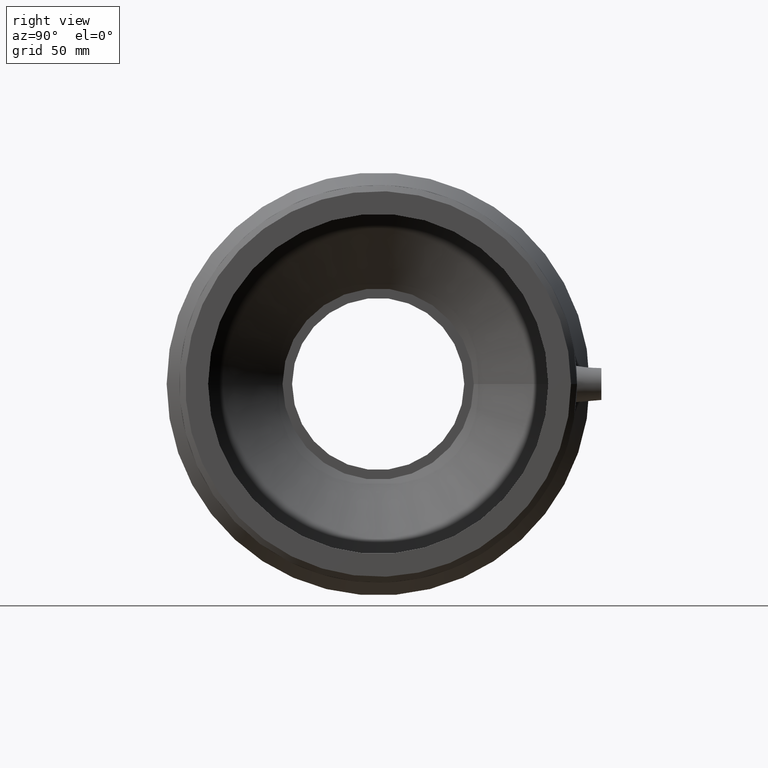
[diagram: clean part render]
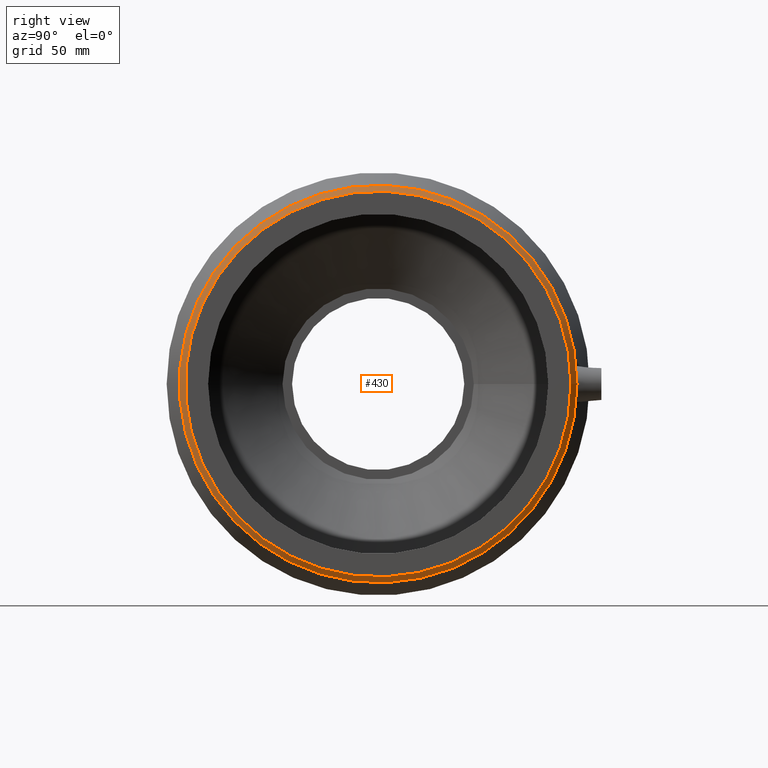
[diagram: same view with one face highlighted and labeled with its STEP entity id]
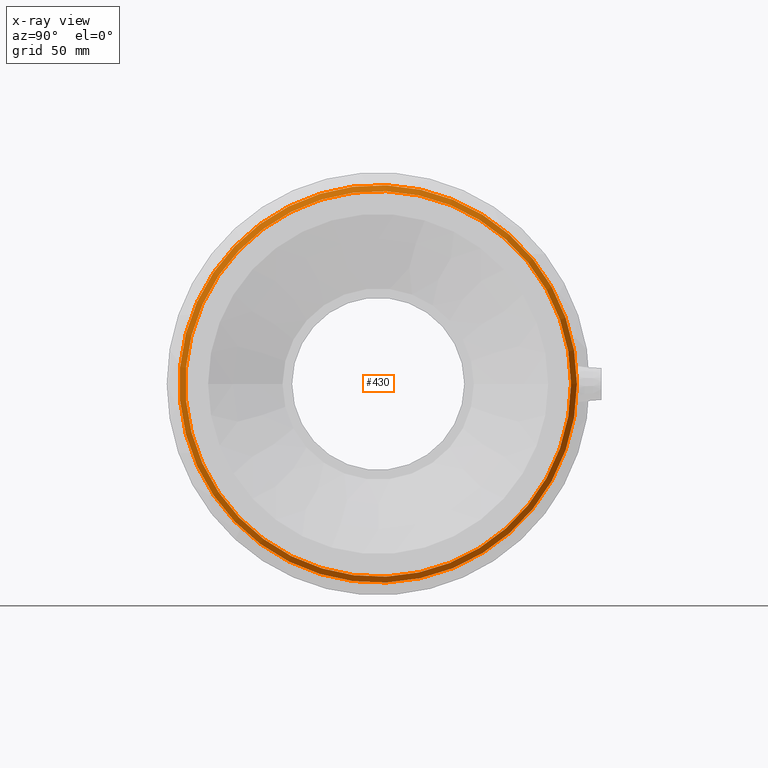
[diagram: x-ray of the same camera — body ghosted, the highlighted face saturated]
A machine part, right view. The second image highlights one B-rep face of the part: STEP entity #430.
The next image is the same camera in x-ray: the body ghosted, the highlighted face saturated — about 0% of this face is hidden behind the body in this view.
In plain terms, the highlighted conical surface has half-angle 45 deg.
Its self-contained STEP definition (entity closure, byte-faithful):
#25=CONICAL_SURFACE('',#495,92.12705,45.);
#54=FACE_BOUND('',#173,.T.);
#108=FACE_OUTER_BOUND('',#172,.T.);
#172=EDGE_LOOP('',(#365));
#173=EDGE_LOOP('',(#366));
#223=CIRCLE('',#494,93.53);
#224=CIRCLE('',#496,90.7241);
#262=VERTEX_POINT('',#818);
#263=VERTEX_POINT('',#821);
#301=EDGE_CURVE('',#262,#262,#223,.T.);
#302=EDGE_CURVE('',#263,#263,#224,.T.);
#365=ORIENTED_EDGE('',*,*,#301,.T.);
#366=ORIENTED_EDGE('',*,*,#302,.F.);
#430=ADVANCED_FACE('',(#108,#54),#25,.T.);
#494=AXIS2_PLACEMENT_3D('',#819,#620,#621);
#495=AXIS2_PLACEMENT_3D('',#820,#622,#623);
#496=AXIS2_PLACEMENT_3D('',#822,#624,#625);
#620=DIRECTION('center_axis',(1.,0.,0.));
#621=DIRECTION('ref_axis',(0.,0.,-1.));
#622=DIRECTION('center_axis',(-1.,0.,0.));
#623=DIRECTION('ref_axis',(0.,1.,0.));
#624=DIRECTION('center_axis',(1.,0.,0.));
#625=DIRECTION('ref_axis',(0.,0.,-1.));
#818=CARTESIAN_POINT('',(93.6941,93.53,0.));
#819=CARTESIAN_POINT('Origin',(93.6941,0.,0.));
#820=CARTESIAN_POINT('Origin',(95.09705,0.,0.));
#821=CARTESIAN_POINT('',(96.5,90.7241,0.));
#822=CARTESIAN_POINT('Origin',(96.5,0.,0.));